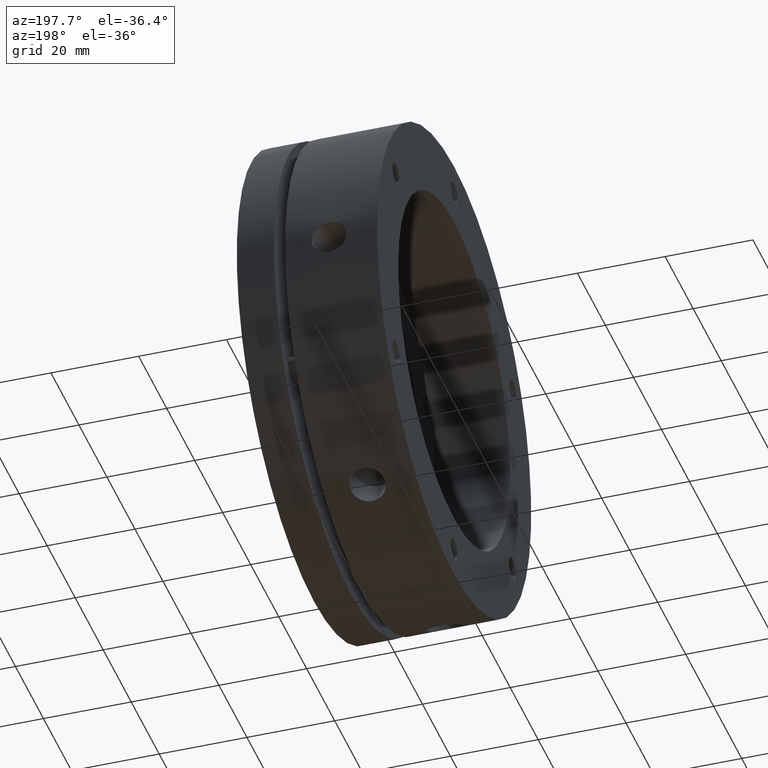
[diagram: clean part render]
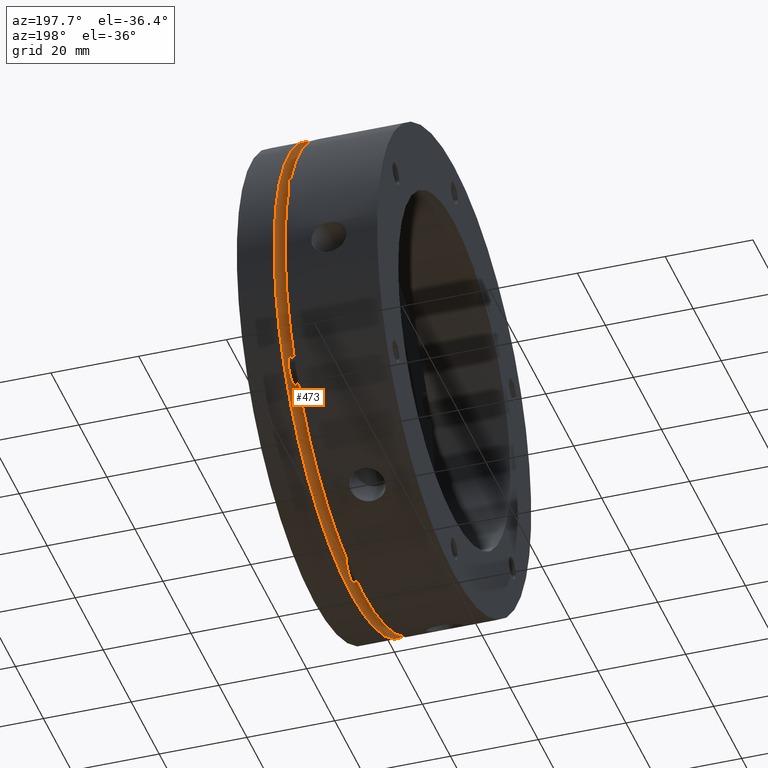
[diagram: same view with one face highlighted and labeled with its STEP entity id]
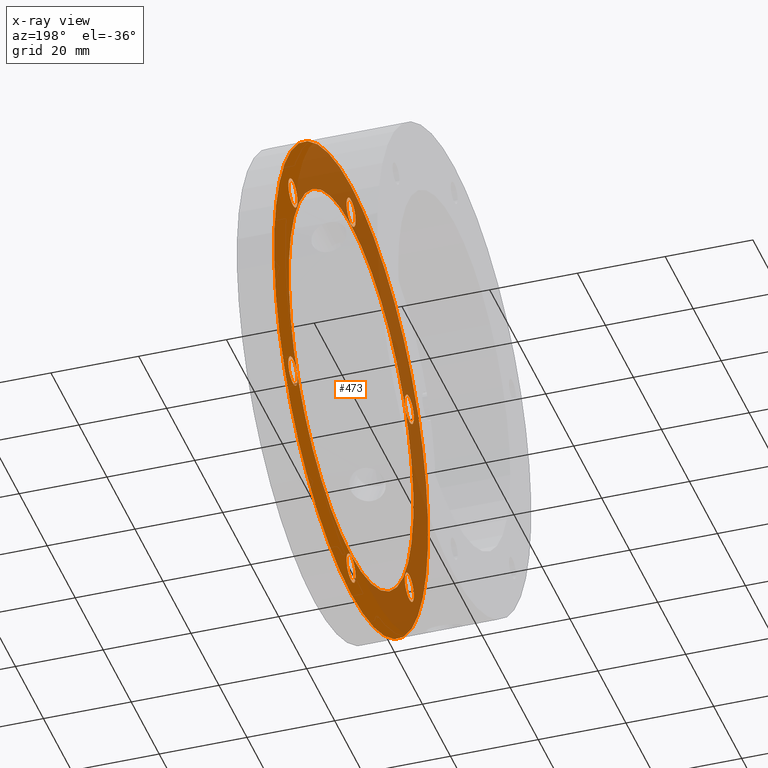
[diagram: x-ray of the same camera — body ghosted, the highlighted face saturated]
A machine part, auxiliary view. The second image highlights one B-rep face of the part: STEP entity #473.
The next image is the same camera in x-ray: the body ghosted, the highlighted face saturated — about 55% of this face is hidden behind the body in this view.
In plain terms, the highlighted planar face has unit normal (1, 0, 0).
Its self-contained STEP definition (entity closure, byte-faithful):
#2 = VERTEX_POINT ( 'NONE', #4726 ) ;
#3 = VERTEX_POINT ( 'NONE', #4727 ) ;
#5 = VERTEX_POINT ( 'NONE', #4701 ) ;
#61 = VERTEX_POINT ( 'NONE', #4757 ) ;
#207 = VERTEX_POINT ( 'NONE', #4790 ) ;
#208 = VERTEX_POINT ( 'NONE', #4789 ) ;
#211 = VERTEX_POINT ( 'NONE', #4792 ) ;
#212 = VERTEX_POINT ( 'NONE', #4786 ) ;
#249 = EDGE_CURVE ( 'NONE', #4530, #4525, #2598, .T. ) ;
#290 = AXIS2_PLACEMENT_3D ( 'NONE', #3054, #3055, #3056 ) ;
#307 = EDGE_CURVE ( 'NONE', #61, #5, #2647, .T. ) ;
#372 = EDGE_CURVE ( 'NONE', #4588, #2, #2744, .T. ) ;
#373 = EDGE_CURVE ( 'NONE', #212, #4528, #2746, .T. ) ;
#374 = EDGE_CURVE ( 'NONE', #4517, #4529, #2745, .T. ) ;
#375 = EDGE_CURVE ( 'NONE', #208, #211, #2747, .T. ) ;
#376 = EDGE_CURVE ( 'NONE', #3, #4381, #2748, .T. ) ;
#377 = EDGE_CURVE ( 'NONE', #4382, #207, #2749, .T. ) ;
#378 = EDGE_CURVE ( 'NONE', #4525, #4530, #2750, .T. ) ;
#414 = EDGE_CURVE ( 'NONE', #5, #61, #2787, .T. ) ;
#457 = AXIS2_PLACEMENT_3D ( 'NONE', #1338, #1339, #1340 ) ;
#473 = ADVANCED_FACE ( 'NONE', ( #2818, #2823, #2821, #2822, #2824, #2825, #2826, #2827 ), #3704, .F. ) ;
#897 = CIRCLE ( 'NONE', #457, 3.249999999999999600 ) ;
#898 = CIRCLE ( 'NONE', #4616, 3.249999999999999600 ) ;
#937 = CIRCLE ( 'NONE', #4605, 3.249999999999999600 ) ;
#939 = CIRCLE ( 'NONE', #4604, 3.250000000000002700 ) ;
#941 = CIRCLE ( 'NONE', #4601, 55.00000000000000000 ) ;
#947 = CIRCLE ( 'NONE', #4602, 3.249999999999999600 ) ;
#1338 = CARTESIAN_POINT ( 'NONE',  ( 23.49999999999999300, 41.56921938165311300, 23.99999999999998600 ) ) ;
#1339 = DIRECTION ( 'NONE',  ( -1.000000000000000000, -0.0000000000000000000, -0.0000000000000000000 ) ) ;
#1340 = DIRECTION ( 'NONE',  ( 0.0000000000000000000, 0.0000000000000000000, -1.000000000000000000 ) ) ;
#1349 = CARTESIAN_POINT ( 'NONE',  ( 23.49999999999999300, -41.56921938165308500, 24.00000000000002100 ) ) ;
#1350 = DIRECTION ( 'NONE',  ( -1.000000000000000000, -0.0000000000000000000, -0.0000000000000000000 ) ) ;
#1351 = DIRECTION ( 'NONE',  ( 0.0000000000000000000, 0.0000000000000000000, -1.000000000000000000 ) ) ;
#1407 = CARTESIAN_POINT ( 'NONE',  ( 23.49999999999999300, -41.56921938165309200, -24.00000000000000400 ) ) ;
#1408 = DIRECTION ( 'NONE',  ( -1.000000000000000000, -0.0000000000000000000, -0.0000000000000000000 ) ) ;
#1409 = DIRECTION ( 'NONE',  ( 0.0000000000000000000, 0.0000000000000000000, -1.000000000000000000 ) ) ;
#1413 = CARTESIAN_POINT ( 'NONE',  ( 23.49999999999999300, -8.881783999999999800E-015, -48.00000000000003600 ) ) ;
#1414 = DIRECTION ( 'NONE',  ( -1.000000000000000000, -0.0000000000000000000, -0.0000000000000000000 ) ) ;
#1415 = DIRECTION ( 'NONE',  ( 0.0000000000000000000, 0.0000000000000000000, -1.000000000000000000 ) ) ;
#1423 = CARTESIAN_POINT ( 'NONE',  ( 23.49999999999999300, 41.56921938165307800, -24.00000000000003900 ) ) ;
#1424 = DIRECTION ( 'NONE',  ( -1.000000000000000000, -0.0000000000000000000, -0.0000000000000000000 ) ) ;
#1425 = DIRECTION ( 'NONE',  ( 0.0000000000000000000, 0.0000000000000000000, -1.000000000000000000 ) ) ;
#1428 = CARTESIAN_POINT ( 'NONE',  ( 23.49999999999999300, 0.0000000000000000000, 0.0000000000000000000 ) ) ;
#1429 = DIRECTION ( 'NONE',  ( 1.000000000000000000, 0.0000000000000000000, 0.0000000000000000000 ) ) ;
#1430 = DIRECTION ( 'NONE',  ( 0.0000000000000000000, 0.0000000000000000000, -1.000000000000000000 ) ) ;
#1863 = CARTESIAN_POINT ( 'NONE',  ( 23.49999999999999300, 41.56921938165307800, -20.75000000000003900 ) ) ;
#1868 = CARTESIAN_POINT ( 'NONE',  ( 23.49999999999999300, 41.56921938165311300, 20.74999999999998600 ) ) ;
#1872 = CARTESIAN_POINT ( 'NONE',  ( 23.49999999999999300, -41.56921938165308500, 27.25000000000002100 ) ) ;
#1877 = CARTESIAN_POINT ( 'NONE',  ( 23.49999999999999300, 3.980102097228895300E-016, 51.25000000000003600 ) ) ;
#1880 = CARTESIAN_POINT ( 'NONE',  ( 23.49999999999999300, -41.56921938165309200, -27.25000000000000400 ) ) ;
#1881 = CARTESIAN_POINT ( 'NONE',  ( 23.49999999999999300, -41.56921938165308500, 20.75000000000002100 ) ) ;
#1882 = CARTESIAN_POINT ( 'NONE',  ( 23.49999999999999300, 0.0000000000000000000, 44.75000000000003600 ) ) ;
#1885 = CARTESIAN_POINT ( 'NONE',  ( 23.49999999999999300, 6.735557395310442600E-015, 55.00000000000000000 ) ) ;
#2092 = ORIENTED_EDGE ( 'NONE', *, *, #372, .F. ) ;
#2093 = ORIENTED_EDGE ( 'NONE', *, *, #3356, .F. ) ;
#2098 = ORIENTED_EDGE ( 'NONE', *, *, #377, .F. ) ;
#2099 = ORIENTED_EDGE ( 'NONE', *, *, #3352, .F. ) ;
#2100 = ORIENTED_EDGE ( 'NONE', *, *, #375, .F. ) ;
#2101 = ORIENTED_EDGE ( 'NONE', *, *, #3340, .F. ) ;
#2102 = ORIENTED_EDGE ( 'NONE', *, *, #307, .F. ) ;
#2103 = ORIENTED_EDGE ( 'NONE', *, *, #374, .F. ) ;
#2104 = ORIENTED_EDGE ( 'NONE', *, *, #3335, .F. ) ;
#2105 = ORIENTED_EDGE ( 'NONE', *, *, #373, .F. ) ;
#2106 = ORIENTED_EDGE ( 'NONE', *, *, #3293, .F. ) ;
#2107 = ORIENTED_EDGE ( 'NONE', *, *, #414, .F. ) ;
#2108 = ORIENTED_EDGE ( 'NONE', *, *, #249, .F. ) ;
#2110 = ORIENTED_EDGE ( 'NONE', *, *, #378, .F. ) ;
#2111 = ORIENTED_EDGE ( 'NONE', *, *, #376, .F. ) ;
#2112 = ORIENTED_EDGE ( 'NONE', *, *, #3282, .F. ) ;
#2212 = AXIS2_PLACEMENT_3D ( 'NONE', #3520, #3521, #3522 ) ;
#2213 = AXIS2_PLACEMENT_3D ( 'NONE', #3523, #3524, #3525 ) ;
#2214 = AXIS2_PLACEMENT_3D ( 'NONE', #3517, #3518, #3519 ) ;
#2217 = AXIS2_PLACEMENT_3D ( 'NONE', #3526, #3527, #3528 ) ;
#2218 = AXIS2_PLACEMENT_3D ( 'NONE', #3532, #3533, #3534 ) ;
#2230 = AXIS2_PLACEMENT_3D ( 'NONE', #3529, #3530, #3531 ) ;
#2241 = AXIS2_PLACEMENT_3D ( 'NONE', #3535, #3536, #3537 ) ;
#2262 = AXIS2_PLACEMENT_3D ( 'NONE', #3164, #3165, #3166 ) ;
#2432 = EDGE_LOOP ( 'NONE', ( #2093, #2092 ) ) ;
#2433 = EDGE_LOOP ( 'NONE', ( #2112, #2111 ) ) ;
#2434 = EDGE_LOOP ( 'NONE', ( #2106, #2103 ) ) ;
#2436 = EDGE_LOOP ( 'NONE', ( #2104, #2105 ) ) ;
#2437 = EDGE_LOOP ( 'NONE', ( #2102, #2107 ) ) ;
#2438 = EDGE_LOOP ( 'NONE', ( #2099, #2098 ) ) ;
#2439 = EDGE_LOOP ( 'NONE', ( #2101, #2100 ) ) ;
#2440 = EDGE_LOOP ( 'NONE', ( #2108, #2110 ) ) ;
#2598 = CIRCLE ( 'NONE', #290, 3.250000000000002700 ) ;
#2647 = CIRCLE ( 'NONE', #2262, 44.49999999999999300 ) ;
#2744 = CIRCLE ( 'NONE', #2214, 55.00000000000000000 ) ;
#2745 = CIRCLE ( 'NONE', #2213, 3.249999999999999600 ) ;
#2746 = CIRCLE ( 'NONE', #2212, 3.249999999999999600 ) ;
#2747 = CIRCLE ( 'NONE', #2217, 3.250000000000002700 ) ;
#2748 = CIRCLE ( 'NONE', #2230, 3.249999999999999600 ) ;
#2749 = CIRCLE ( 'NONE', #2218, 3.249999999999999600 ) ;
#2750 = CIRCLE ( 'NONE', #2241, 3.250000000000002700 ) ;
#2787 = CIRCLE ( 'NONE', #4562, 44.49999999999999300 ) ;
#2818 = FACE_BOUND ( 'NONE', #2437, .T. ) ;
#2821 = FACE_BOUND ( 'NONE', #2434, .T. ) ;
#2822 = FACE_BOUND ( 'NONE', #2436, .T. ) ;
#2823 = FACE_BOUND ( 'NONE', #2440, .T. ) ;
#2824 = FACE_BOUND ( 'NONE', #2439, .T. ) ;
#2825 = FACE_BOUND ( 'NONE', #2438, .T. ) ;
#2826 = FACE_BOUND ( 'NONE', #2433, .T. ) ;
#2827 = FACE_OUTER_BOUND ( 'NONE', #2432, .T. ) ;
#3054 = CARTESIAN_POINT ( 'NONE',  ( 23.49999999999999300, 0.0000000000000000000, 48.00000000000003600 ) ) ;
#3055 = DIRECTION ( 'NONE',  ( -1.000000000000000000, -0.0000000000000000000, -0.0000000000000000000 ) ) ;
#3056 = DIRECTION ( 'NONE',  ( 0.0000000000000000000, 0.0000000000000000000, -1.000000000000000000 ) ) ;
#3164 = CARTESIAN_POINT ( 'NONE',  ( 23.49999999999999300, 0.0000000000000000000, 0.0000000000000000000 ) ) ;
#3165 = DIRECTION ( 'NONE',  ( -1.000000000000000000, 0.0000000000000000000, 0.0000000000000000000 ) ) ;
#3166 = DIRECTION ( 'NONE',  ( 0.0000000000000000000, 0.0000000000000000000, 1.000000000000000000 ) ) ;
#3282 = EDGE_CURVE ( 'NONE', #4381, #3, #897, .T. ) ;
#3293 = EDGE_CURVE ( 'NONE', #4529, #4517, #898, .T. ) ;
#3335 = EDGE_CURVE ( 'NONE', #4528, #212, #937, .T. ) ;
#3340 = EDGE_CURVE ( 'NONE', #211, #208, #939, .T. ) ;
#3352 = EDGE_CURVE ( 'NONE', #207, #4382, #947, .T. ) ;
#3356 = EDGE_CURVE ( 'NONE', #2, #4588, #941, .T. ) ;
#3517 = CARTESIAN_POINT ( 'NONE',  ( 23.49999999999999300, 0.0000000000000000000, 0.0000000000000000000 ) ) ;
#3518 = DIRECTION ( 'NONE',  ( 1.000000000000000000, 0.0000000000000000000, 0.0000000000000000000 ) ) ;
#3519 = DIRECTION ( 'NONE',  ( 0.0000000000000000000, 0.0000000000000000000, -1.000000000000000000 ) ) ;
#3520 = CARTESIAN_POINT ( 'NONE',  ( 23.49999999999999300, -41.56921938165309200, -24.00000000000000400 ) ) ;
#3521 = DIRECTION ( 'NONE',  ( -1.000000000000000000, -0.0000000000000000000, -0.0000000000000000000 ) ) ;
#3522 = DIRECTION ( 'NONE',  ( 0.0000000000000000000, 0.0000000000000000000, -1.000000000000000000 ) ) ;
#3523 = CARTESIAN_POINT ( 'NONE',  ( 23.49999999999999300, -41.56921938165308500, 24.00000000000002100 ) ) ;
#3524 = DIRECTION ( 'NONE',  ( -1.000000000000000000, -0.0000000000000000000, -0.0000000000000000000 ) ) ;
#3525 = DIRECTION ( 'NONE',  ( 0.0000000000000000000, 0.0000000000000000000, -1.000000000000000000 ) ) ;
#3526 = CARTESIAN_POINT ( 'NONE',  ( 23.49999999999999300, -8.881783999999999800E-015, -48.00000000000003600 ) ) ;
#3527 = DIRECTION ( 'NONE',  ( -1.000000000000000000, -0.0000000000000000000, -0.0000000000000000000 ) ) ;
#3528 = DIRECTION ( 'NONE',  ( 0.0000000000000000000, 0.0000000000000000000, -1.000000000000000000 ) ) ;
#3529 = CARTESIAN_POINT ( 'NONE',  ( 23.49999999999999300, 41.56921938165311300, 23.99999999999998600 ) ) ;
#3530 = DIRECTION ( 'NONE',  ( -1.000000000000000000, -0.0000000000000000000, -0.0000000000000000000 ) ) ;
#3531 = DIRECTION ( 'NONE',  ( 0.0000000000000000000, 0.0000000000000000000, -1.000000000000000000 ) ) ;
#3532 = CARTESIAN_POINT ( 'NONE',  ( 23.49999999999999300, 41.56921938165307800, -24.00000000000003900 ) ) ;
#3533 = DIRECTION ( 'NONE',  ( -1.000000000000000000, -0.0000000000000000000, -0.0000000000000000000 ) ) ;
#3534 = DIRECTION ( 'NONE',  ( 0.0000000000000000000, 0.0000000000000000000, -1.000000000000000000 ) ) ;
#3535 = CARTESIAN_POINT ( 'NONE',  ( 23.49999999999999300, 0.0000000000000000000, 48.00000000000003600 ) ) ;
#3536 = DIRECTION ( 'NONE',  ( -1.000000000000000000, -0.0000000000000000000, -0.0000000000000000000 ) ) ;
#3537 = DIRECTION ( 'NONE',  ( 0.0000000000000000000, 0.0000000000000000000, -1.000000000000000000 ) ) ;
#3642 = CARTESIAN_POINT ( 'NONE',  ( 23.49999999999999300, 0.0000000000000000000, 0.0000000000000000000 ) ) ;
#3643 = DIRECTION ( 'NONE',  ( -1.000000000000000000, 0.0000000000000000000, 0.0000000000000000000 ) ) ;
#3644 = DIRECTION ( 'NONE',  ( 0.0000000000000000000, 0.0000000000000000000, 1.000000000000000000 ) ) ;
#3704 = PLANE ( 'NONE',  #4545 ) ;
#3709 = CARTESIAN_POINT ( 'NONE',  ( 23.49999999999999300, 49.75000000000000000, 0.0000000000000000000 ) ) ;
#3713 = DIRECTION ( 'NONE',  ( 1.000000000000000000, -0.0000000000000000000, 0.0000000000000000000 ) ) ;
#3714 = DIRECTION ( 'NONE',  ( 0.0000000000000000000, 0.0000000000000000000, -1.000000000000000000 ) ) ;
#4381 = VERTEX_POINT ( 'NONE', #1868 ) ;
#4382 = VERTEX_POINT ( 'NONE', #1863 ) ;
#4517 = VERTEX_POINT ( 'NONE', #1872 ) ;
#4525 = VERTEX_POINT ( 'NONE', #1877 ) ;
#4528 = VERTEX_POINT ( 'NONE', #1880 ) ;
#4529 = VERTEX_POINT ( 'NONE', #1881 ) ;
#4530 = VERTEX_POINT ( 'NONE', #1882 ) ;
#4545 = AXIS2_PLACEMENT_3D ( 'NONE', #3709, #3713, #3714 ) ;
#4562 = AXIS2_PLACEMENT_3D ( 'NONE', #3642, #3643, #3644 ) ;
#4588 = VERTEX_POINT ( 'NONE', #1885 ) ;
#4601 = AXIS2_PLACEMENT_3D ( 'NONE', #1428, #1429, #1430 ) ;
#4602 = AXIS2_PLACEMENT_3D ( 'NONE', #1423, #1424, #1425 ) ;
#4604 = AXIS2_PLACEMENT_3D ( 'NONE', #1413, #1414, #1415 ) ;
#4605 = AXIS2_PLACEMENT_3D ( 'NONE', #1407, #1408, #1409 ) ;
#4616 = AXIS2_PLACEMENT_3D ( 'NONE', #1349, #1350, #1351 ) ;
#4701 = CARTESIAN_POINT ( 'NONE',  ( 23.49999999999999300, 5.449678256205720400E-015, -44.49999999999999300 ) ) ;
#4726 = CARTESIAN_POINT ( 'NONE',  ( 23.49999999999999300, 0.0000000000000000000, -55.00000000000000000 ) ) ;
#4727 = CARTESIAN_POINT ( 'NONE',  ( 23.49999999999999300, 41.56921938165311300, 27.24999999999998600 ) ) ;
#4757 = CARTESIAN_POINT ( 'NONE',  ( 23.49999999999999300, 0.0000000000000000000, 44.49999999999999300 ) ) ;
#4786 = CARTESIAN_POINT ( 'NONE',  ( 23.49999999999999300, -41.56921938165309200, -20.75000000000000400 ) ) ;
#4789 = CARTESIAN_POINT ( 'NONE',  ( 23.49999999999999300, -8.483773790277109000E-015, -44.75000000000003600 ) ) ;
#4790 = CARTESIAN_POINT ( 'NONE',  ( 23.49999999999999300, 41.56921938165307800, -27.25000000000003900 ) ) ;
#4792 = CARTESIAN_POINT ( 'NONE',  ( 23.49999999999999300, -8.881783999999999800E-015, -51.25000000000003600 ) ) ;